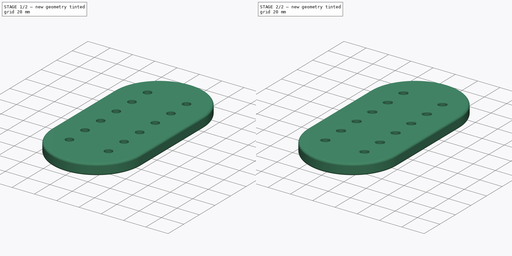
[diagram: build sequence overview — one tinted view per stage of 2, left to right]
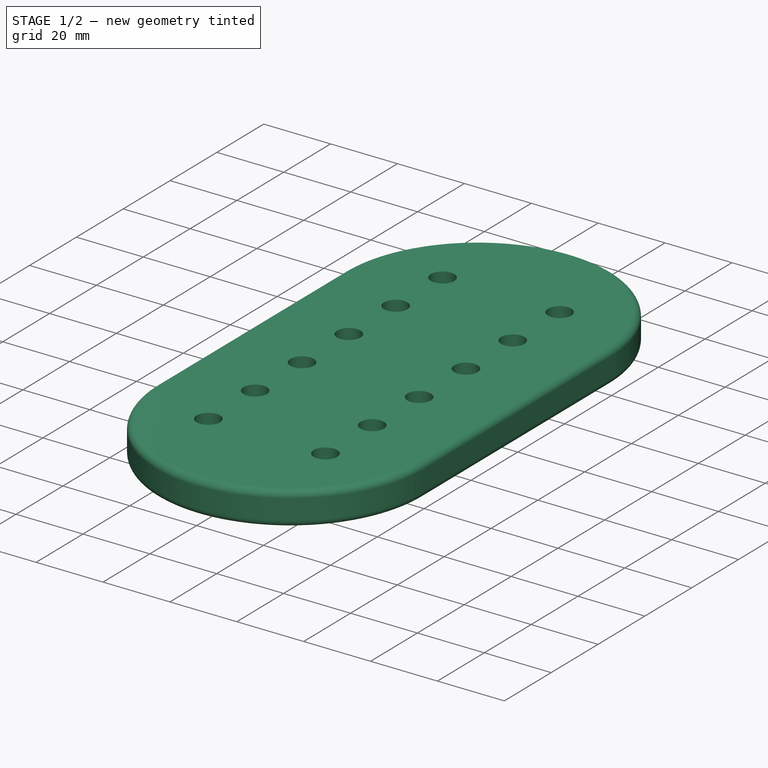
[diagram: stage 1 of 2 — iso view after this stage's code; geometry added in this stage tinted green]
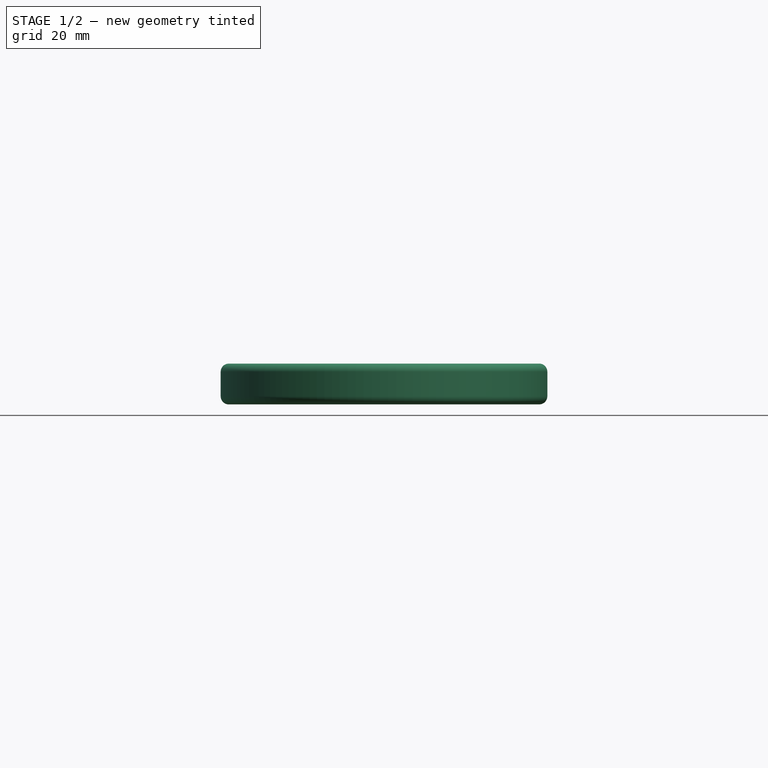
[diagram: stage 1 of 2 — front view after this stage's code; geometry added in this stage tinted green]
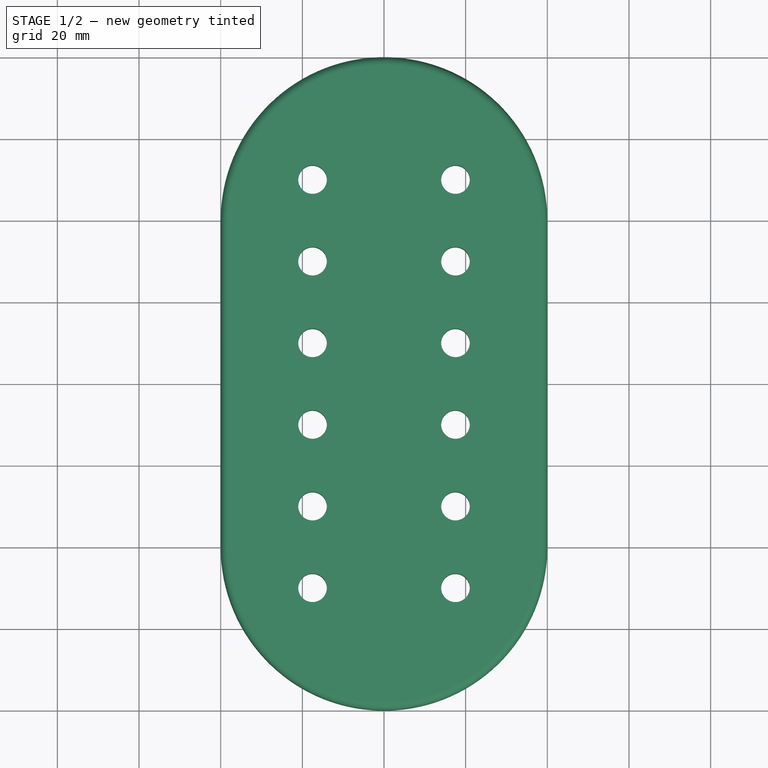
[diagram: stage 1 of 2 — top view after this stage's code; geometry added in this stage tinted green]
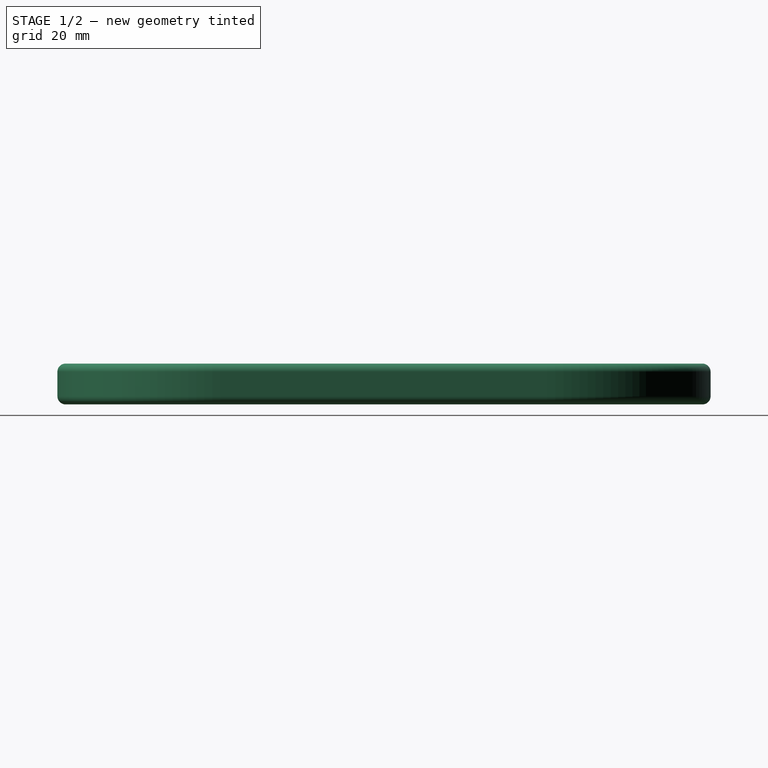
[diagram: stage 1 of 2 — right view after this stage's code; geometry added in this stage tinted green]
FCSTD DOCUMENT  (FreeCAD 0.19R24366 (Git))
Label: ShoeSim
License: Creative Commons Attribution-NonCommercial-ShareAlike
LicenseURL: http://creativecommons.org/licenses/by-nc-sa/4.0/
objects: PartDesign::Fillet×2, Sketcher::SketchObject×1, PartDesign::Pad×1, PartDesign::Body×1
note: 8 computed .brp shape members not serialized (recipe doc carries the construction recipe); baked Part::Feature solids carry a one-line shape summary decoded from their .brp

FEATURE [Sketcher::SketchObject] Sketch
  FullyConstrained = true
  MapMode = 5
  Support = -> [XY_Plane]
  expr: Constraints[8] = .Constraints.Dist / 2
  sketch-geometry (27):
    g0: ArcOfCircle CenterX=1.2e-15 CenterY=-40 CenterZ=0 NormalX=0 NormalY=0 NormalZ=1 AngleXU=0 Radius=40 StartAngle=3.14159 EndAngle=6.28319
    g1: ArcOfCircle CenterX=-1.2e-15 CenterY=40 CenterZ=0 NormalX=0 NormalY=0 NormalZ=1 AngleXU=0 Radius=40 StartAngle=1e-16 EndAngle=3.14159
    g2: LineSegment StartX=40 StartY=-40 StartZ=0 EndX=40 EndY=40 EndZ=0
    g3: LineSegment StartX=-40 StartY=-40 StartZ=0 EndX=-40 EndY=40 EndZ=0
    g4: Circle CenterX=-17.5 CenterY=50 CenterZ=0 NormalX=0 NormalY=0 NormalZ=1 AngleXU=0 Radius=3.5
    g5: Circle CenterX=-17.5 CenterY=30 CenterZ=0 NormalX=0 NormalY=0 NormalZ=1 AngleXU=0 Radius=3.5
    g6: Circle CenterX=-17.5 CenterY=10 CenterZ=0 NormalX=0 NormalY=0 NormalZ=1 AngleXU=0 Radius=3.5
    g7: Circle CenterX=-17.5 CenterY=-10 CenterZ=0 NormalX=0 NormalY=0 NormalZ=1 AngleXU=0 Radius=3.5
    g8: Circle CenterX=-17.5 CenterY=-30 CenterZ=0 NormalX=0 NormalY=0 NormalZ=1 AngleXU=0 Radius=3.5
    g9: Circle CenterX=-17.5 CenterY=-50 CenterZ=0 NormalX=0 NormalY=0 NormalZ=1 AngleXU=0 Radius=3.5
    g10: Circle CenterX=17.5 CenterY=50 CenterZ=0 NormalX=0 NormalY=0 NormalZ=1 AngleXU=0 Radius=3.5
    g11: Circle CenterX=17.5 CenterY=30 CenterZ=0 NormalX=0 NormalY=0 NormalZ=1 AngleXU=0 Radius=3.5
    g12: Circle CenterX=17.5 CenterY=10 CenterZ=0 NormalX=0 NormalY=0 NormalZ=1 AngleXU=0 Radius=3.5
    g13: Circle CenterX=17.5 CenterY=-10 CenterZ=0 NormalX=0 NormalY=0 NormalZ=1 AngleXU=0 Radius=3.5
    g14: Circle CenterX=17.5 CenterY=-30 CenterZ=0 NormalX=0 NormalY=0 NormalZ=1 AngleXU=0 Radius=3.5
    g15: Circle CenterX=17.5 CenterY=-50 CenterZ=0 NormalX=0 NormalY=0 NormalZ=1 AngleXU=0 Radius=3.5
    g16: LineSegment StartX=-17.5 StartY=50 StartZ=0 EndX=-17.5 EndY=30 EndZ=0
    g17: LineSegment StartX=-17.5 StartY=30 StartZ=0 EndX=-17.5 EndY=10 EndZ=0
    g18: LineSegment StartX=-17.5 StartY=10 StartZ=0 EndX=-17.5 EndY=-10 EndZ=0
    g19: LineSegment StartX=-17.5 StartY=-10 StartZ=0 EndX=-17.5 EndY=-30 EndZ=0
    g20: LineSegment StartX=-17.5 StartY=-30 StartZ=0 EndX=-17.5 EndY=-50 EndZ=0
    g21: LineSegment StartX=17.5 StartY=50 StartZ=0 EndX=17.5 EndY=30 EndZ=0
    g22: LineSegment StartX=17.5 StartY=30 StartZ=0 EndX=17.5 EndY=10 EndZ=0
    g23: LineSegment StartX=17.5 StartY=10 StartZ=0 EndX=17.5 EndY=-10 EndZ=0
    g24: LineSegment StartX=17.5 StartY=-10 StartZ=0 EndX=17.5 EndY=-30 EndZ=0
    g25: LineSegment StartX=17.5 StartY=-30 StartZ=0 EndX=17.5 EndY=-50 EndZ=0
    g26: LineSegment StartX=-17.5 StartY=50 StartZ=0 EndX=17.5 EndY=50 EndZ=0
  constraints (66):
    c: Tangent(g0,g3) = 1.5708
    c: Tangent(g0,g2) = -1.5708
    c: Tangent(g2,g1) = -1.5708
    c: Tangent(g3,g1) = 1.5708
    c: Vertical(g2)
    c: Equal(g0,g1)
    c: Symmetric(g1,g0,g-1)
    c: Distance(g3) = 80  'Dist'
    c: Radius(g1) = 40
    c: Equal(g4,g5)
    c: Equal(g5,g6)
    c: Equal(g6,g7)
    c: Equal(g7,g8)
    c: Equal(g8,g9)
    c: Equal(g9,g10)
    c: Equal(g10,g11)
    c: Equal(g11,g12)
    c: Equal(g12,g13)
    c: Equal(g13,g14)
    c: Equal(g14,g15)
    c: Coincident(g16,g4)
    c: Coincident(g16,g5)
    c: Coincident(g17,g5)
    c: Coincident(g17,g6)
    c: Vertical(g17)
    c: Coincident(g18,g6)
    c: Coincident(g18,g7)
    c: Vertical(g18)
    c: Coincident(g19,g7)
    c: Coincident(g19,g8)
    c: Vertical(g19)
    c: Coincident(g20,g8)
    c: Coincident(g20,g9)
    c: Vertical(g20)
    c: Vertical(g16)
    c: Coincident(g21,g10)
    c: Coincident(g21,g11)
    c: Vertical(g21)
    c: Coincident(g22,g11)
    c: Coincident(g22,g12)
    c: Vertical(g22)
    c: Coincident(g23,g12)
    c: Coincident(g23,g13)
    c: Coincident(g24,g13)
    c: Coincident(g24,g14)
    c: Vertical(g24)
    c: Coincident(g25,g14)
    c: Coincident(g25,g15)
    c: Vertical(g25)
    c: Vertical(g23)
    c: Equal(g16,g17)
    c: Equal(g17,g18)
    c: Equal(g18,g19)
    c: Equal(g19,g20)
    c: Equal(g20,g21)
    c: Equal(g21,g22)
    c: Equal(g22,g23)
    c: Equal(g23,g24)
    c: Equal(g24,g25)
    c: Coincident(g26,g4)
    c: Coincident(g26,g10)
    c: Horizontal(g26)
    c: Symmetric(g4,g15,g-1)
    c: Distance(g26) = 35
    c: Distance(g16) = 20
    c: Radius(g4) = 3.5
FEATURE [PartDesign::Pad] Pad
  Direction = (1,1,1)
  Length = 10
  Length2 = 100
  Profile = -> Sketch
  Type = 0
FEATURE [PartDesign::Fillet] Fillet
  Base = -> Pad [Edge12,Edge11]
  BaseFeature = -> Pad
  Radius = 2
  SupportTransform = false
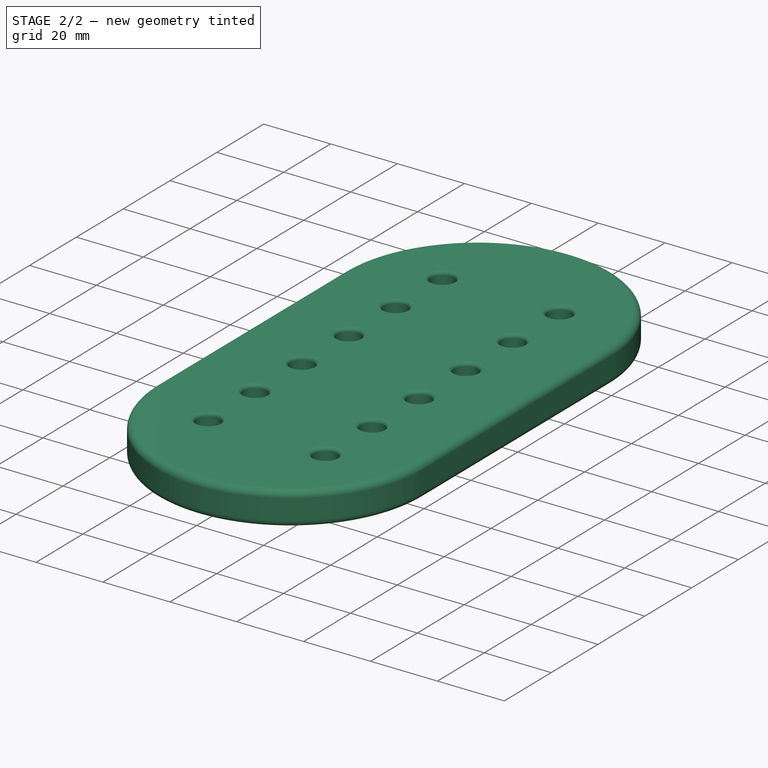
[diagram: stage 2 of 2 — iso view after this stage's code; geometry added in this stage tinted green]
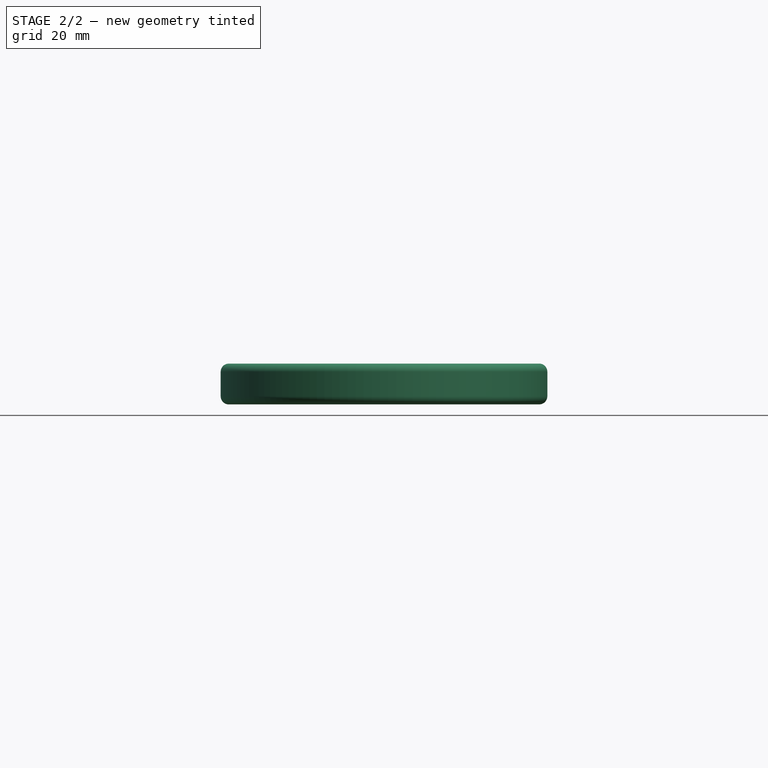
[diagram: stage 2 of 2 — front view after this stage's code; geometry added in this stage tinted green]
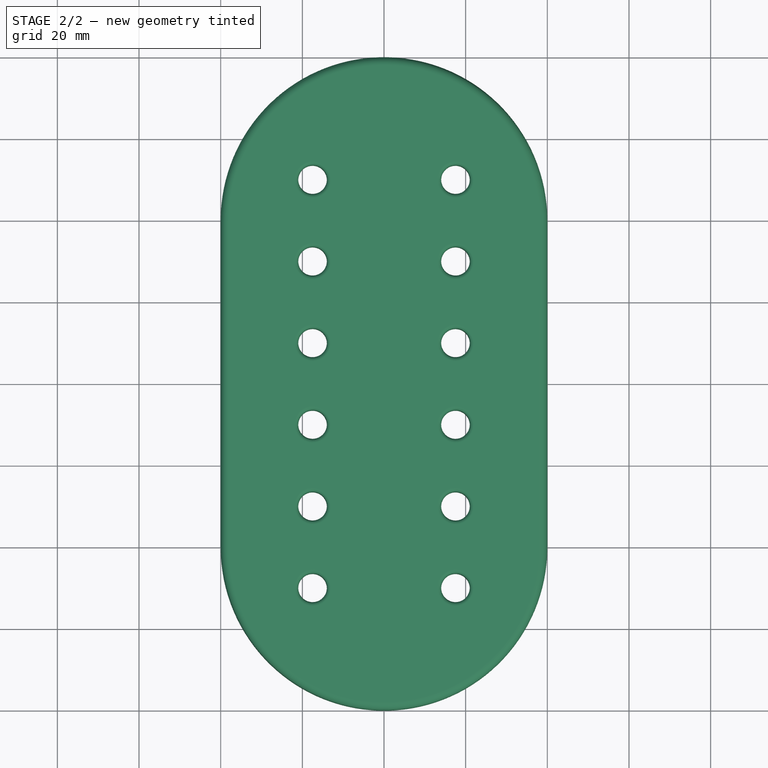
[diagram: stage 2 of 2 — top view after this stage's code; geometry added in this stage tinted green]
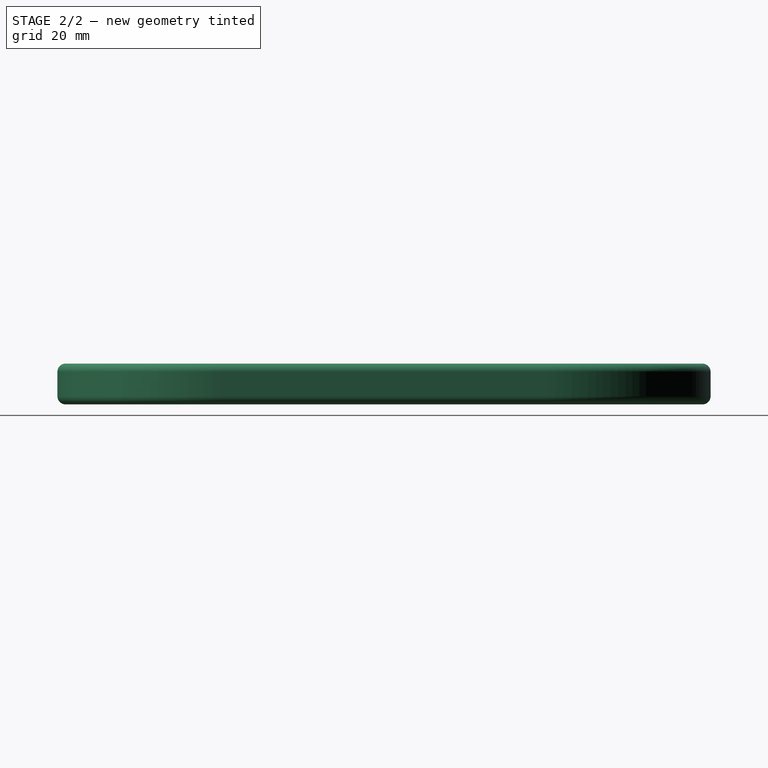
[diagram: stage 2 of 2 — right view after this stage's code; geometry added in this stage tinted green]
FEATURE [PartDesign::Fillet] Fillet001
  Base = -> Fillet [Face22,Face21,Face24,Face26,Face20,Face19,Face15,Face16,Face25,Face23,Face17,Face18]
  BaseFeature = -> Fillet
  Radius = 1
  SupportTransform = false
FEATURE [PartDesign::Body] Body
  Group = -> [Sketch,Pad,Fillet,Fillet001]
  Origin = -> Origin
  Tip = -> Fillet001
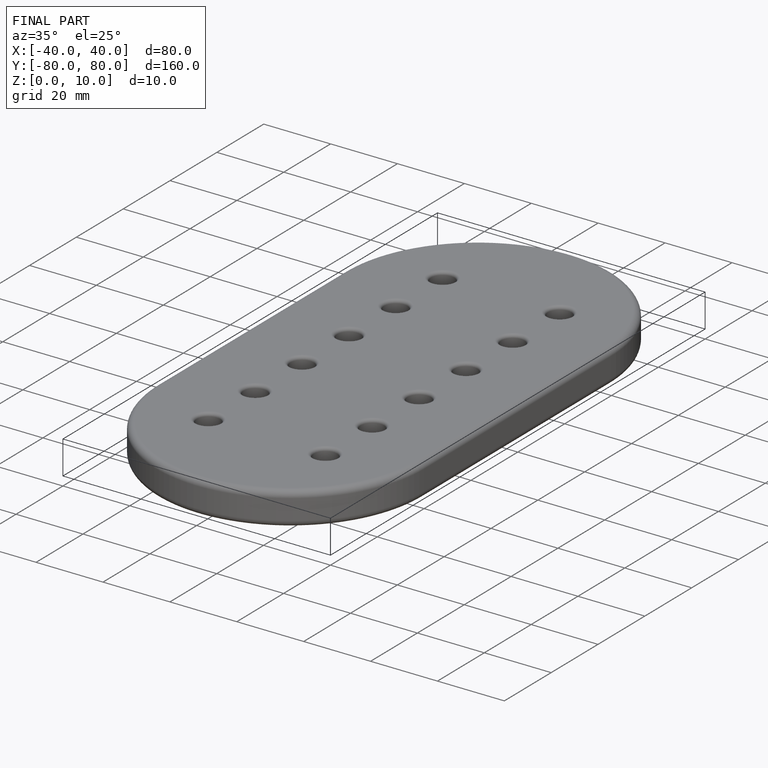
[diagram: finished part — iso view with bounding-box wireframe]
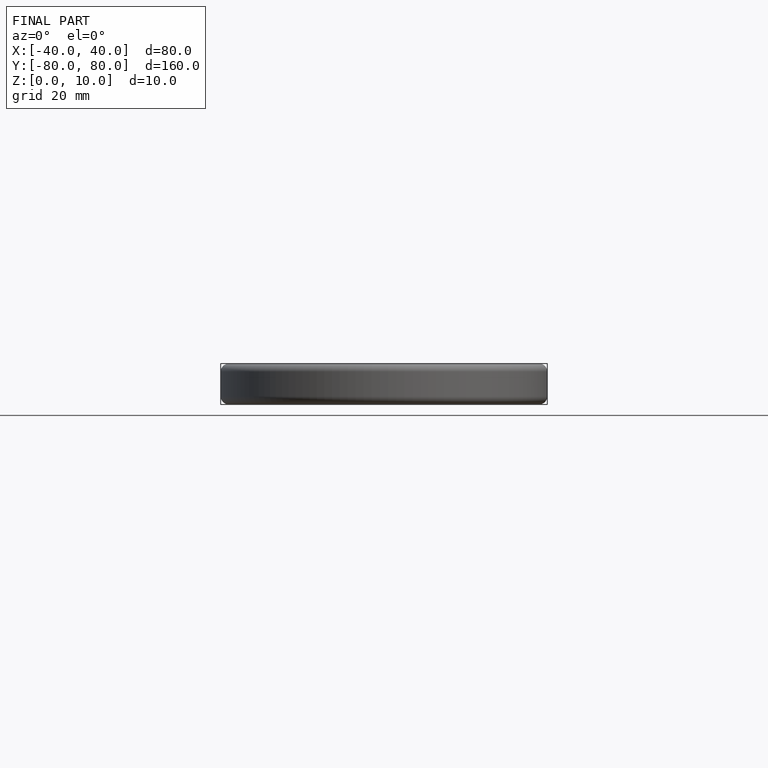
[diagram: finished part — front view with bounding-box wireframe]
